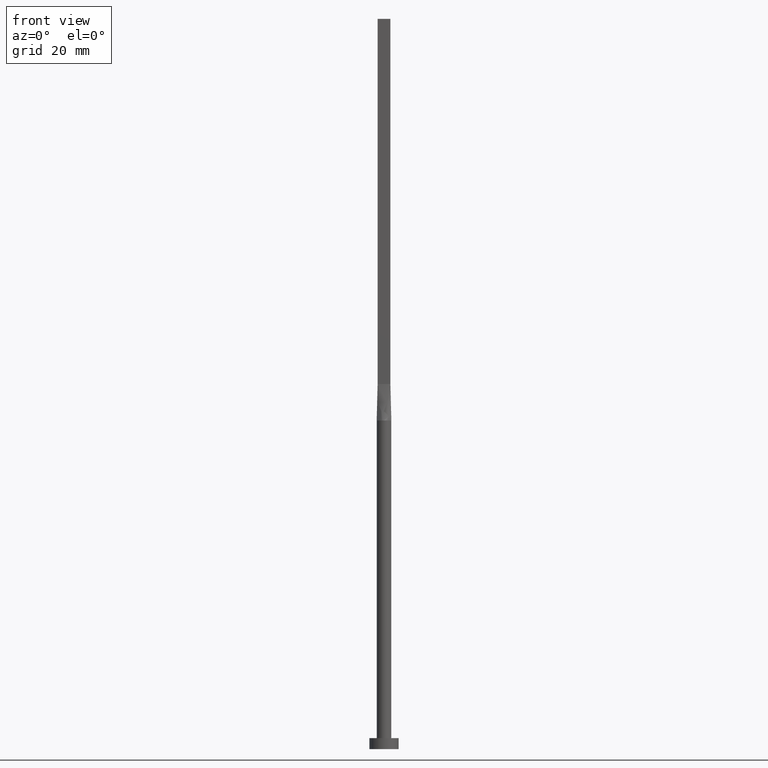
[diagram: clean part render]
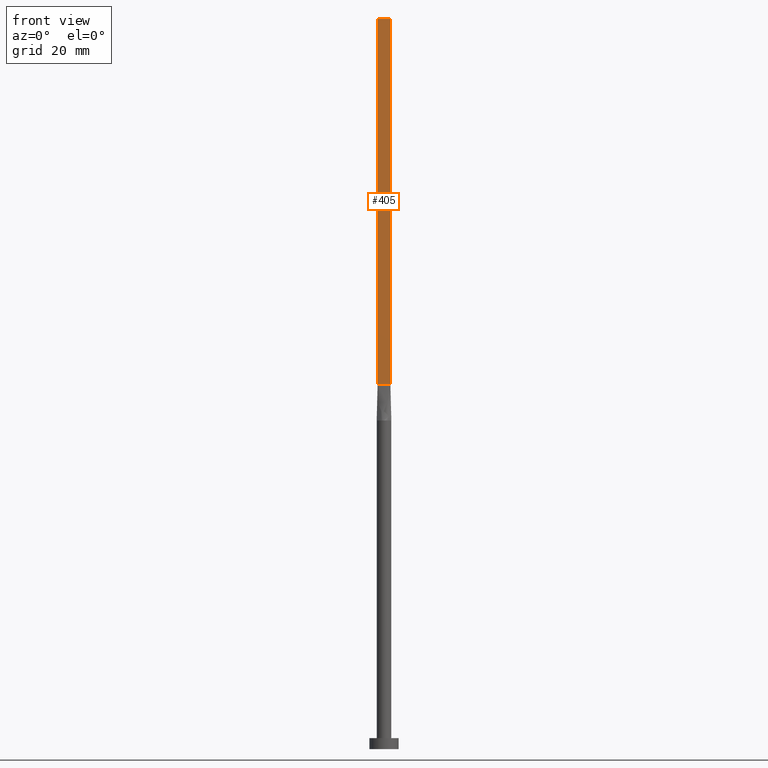
[diagram: same view with one face highlighted and labeled with its STEP entity id]
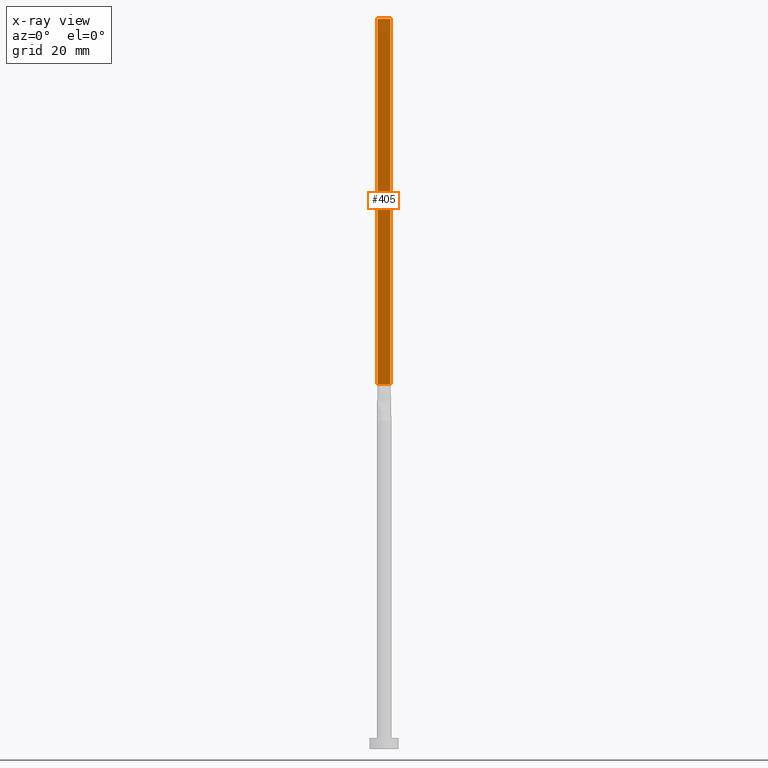
[diagram: x-ray of the same camera — body ghosted, the highlighted face saturated]
A machine part, front view. The second image highlights one B-rep face of the part: STEP entity #405.
The next image is the same camera in x-ray: the body ghosted, the highlighted face saturated — about 0% of this face is hidden behind the body in this view.
In plain terms, the highlighted planar face has unit normal (0, 1, -0).
Its self-contained STEP definition (entity closure, byte-faithful):
#49 = EDGE_CURVE ( 'NONE', #266, #305, #242, .T. ) ;
#64 = FACE_OUTER_BOUND ( 'NONE', #253, .T. ) ;
#74 = DIRECTION ( 'NONE',  ( 1.000000000000000000, -6.195440985631454085E-17, 0.000000000000000000 ) ) ;
#113 = ORIENTED_EDGE ( 'NONE', *, *, #410, .F. ) ;
#114 = DIRECTION ( 'NONE',  ( -0.000000000000000000, -0.000000000000000000, -1.000000000000000000 ) ) ;
#147 = EDGE_CURVE ( 'NONE', #266, #235, #384, .T. ) ;
#150 = CARTESIAN_POINT ( 'NONE',  ( 1.750000000000000000, -0.4999999999999997780, 200.0000000000000000 ) ) ;
#152 = VECTOR ( 'NONE', #114, 1000.000000000000000 ) ;
#204 = VERTEX_POINT ( 'NONE', #518 ) ;
#235 = VERTEX_POINT ( 'NONE', #398 ) ;
#242 = LINE ( 'NONE', #436, #375 ) ;
#253 = EDGE_LOOP ( 'NONE', ( #400, #113, #263, #441 ) ) ;
#263 = ORIENTED_EDGE ( 'NONE', *, *, #49, .F. ) ;
#266 = VERTEX_POINT ( 'NONE', #311 ) ;
#305 = VERTEX_POINT ( 'NONE', #445 ) ;
#311 = CARTESIAN_POINT ( 'NONE',  ( -1.750000000000000000, -0.4999999999999995559, 200.0000000000000000 ) ) ;
#312 = VECTOR ( 'NONE', #484, 1000.000000000000000 ) ;
#315 = VECTOR ( 'NONE', #74, 1000.000000000000000 ) ;
#339 = AXIS2_PLACEMENT_3D ( 'NONE', #418, #512, #367 ) ;
#367 = DIRECTION ( 'NONE',  ( -1.000000000000000000, 6.195440985631454085E-17, 0.000000000000000000 ) ) ;
#375 = VECTOR ( 'NONE', #527, 1000.000000000000000 ) ;
#384 = LINE ( 'NONE', #480, #312 ) ;
#388 = CARTESIAN_POINT ( 'NONE',  ( -1.750000000000000000, -0.4999999999999995559, 99.99999999999998579 ) ) ;
#398 = CARTESIAN_POINT ( 'NONE',  ( -1.750000000000000000, -0.4999999999999995559, 99.99999999999998579 ) ) ;
#400 = ORIENTED_EDGE ( 'NONE', *, *, #551, .T. ) ;
#405 = ADVANCED_FACE ( 'NONE', ( #64 ), #507, .F. ) ;
#410 = EDGE_CURVE ( 'NONE', #305, #204, #421, .T. ) ;
#418 = CARTESIAN_POINT ( 'NONE',  ( -1.750000000000000000, -0.4999999999999995559, 200.0000000000000000 ) ) ;
#421 = LINE ( 'NONE', #150, #152 ) ;
#436 = CARTESIAN_POINT ( 'NONE',  ( -1.750000000000000000, -0.4999999999999995559, 200.0000000000000000 ) ) ;
#441 = ORIENTED_EDGE ( 'NONE', *, *, #147, .T. ) ;
#445 = CARTESIAN_POINT ( 'NONE',  ( 1.750000000000000000, -0.4999999999999997780, 200.0000000000000000 ) ) ;
#480 = CARTESIAN_POINT ( 'NONE',  ( -1.750000000000000000, -0.4999999999999995559, 200.0000000000000000 ) ) ;
#484 = DIRECTION ( 'NONE',  ( -0.000000000000000000, -0.000000000000000000, -1.000000000000000000 ) ) ;
#486 = LINE ( 'NONE', #388, #315 ) ;
#507 = PLANE ( 'NONE',  #339 ) ;
#512 = DIRECTION ( 'NONE',  ( 6.195440985631454085E-17, 1.000000000000000000, -0.000000000000000000 ) ) ;
#518 = CARTESIAN_POINT ( 'NONE',  ( 1.750000000000000000, -0.4999999999999997780, 99.99999999999998579 ) ) ;
#527 = DIRECTION ( 'NONE',  ( 1.000000000000000000, -6.195440985631454085E-17, 0.000000000000000000 ) ) ;
#551 = EDGE_CURVE ( 'NONE', #235, #204, #486, .T. ) ;